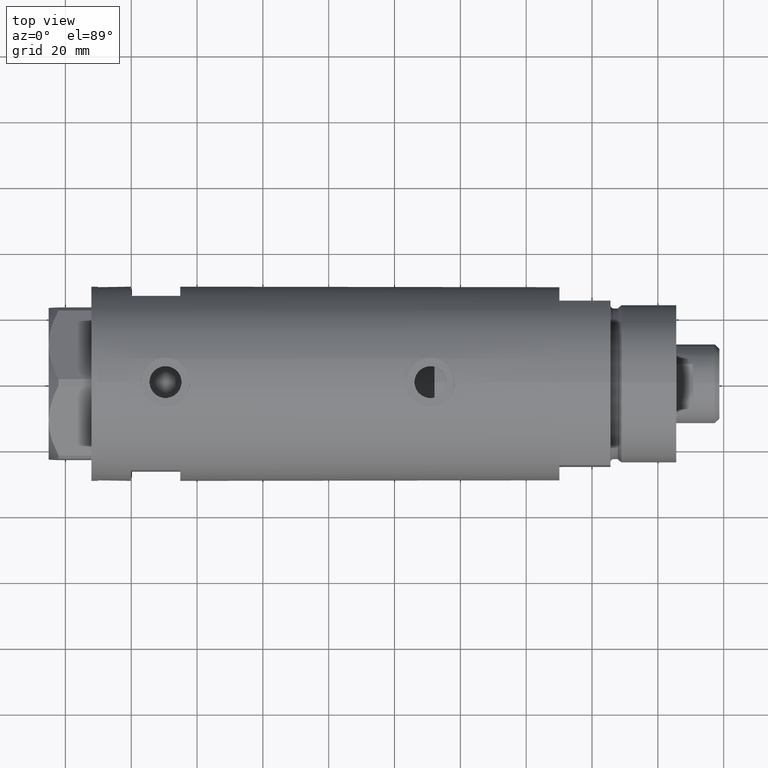
[diagram: clean part render]
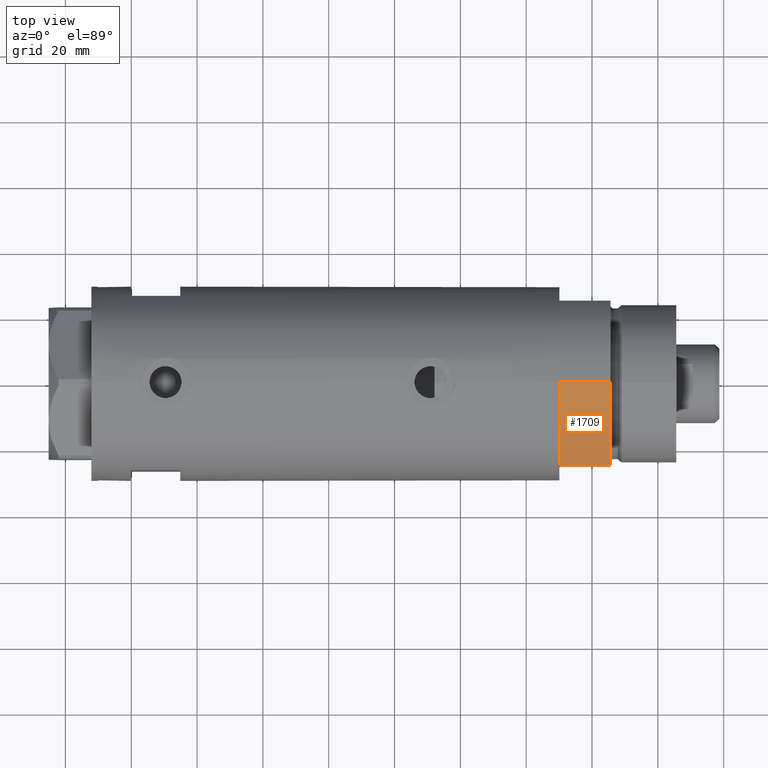
[diagram: same view with one face highlighted and labeled with its STEP entity id]
A machine part, top view. The second image highlights one B-rep face of the part: STEP entity #1709.
In plain terms, the highlighted cylindrical surface (partial cylindrical patch) has radius 29.5 mm, axis along (-1, -0, 0).
Its self-contained STEP definition (entity closure, byte-faithful):
#8 = AXIS2_PLACEMENT_3D ( 'NONE', #2178, #2201, #3653 ) ;
#30 = DIRECTION ( 'NONE',  ( -1.000000000000000000, 0.000000000000000000, 0.000000000000000000 ) ) ;
#96 = EDGE_LOOP ( 'NONE', ( #3444, #4608, #3119, #671 ) ) ;
#127 = CARTESIAN_POINT ( 'NONE',  ( -29.50000000000000355, 0.000000000000000000, 15.50000000000000000 ) ) ;
#389 = AXIS2_PLACEMENT_3D ( 'NONE', #580, #2066, #30 ) ;
#458 = DIRECTION ( 'NONE',  ( -0.000000000000000000, -0.000000000000000000, -1.000000000000000000 ) ) ;
#493 = VECTOR ( 'NONE', #1882, 1000.000000000000000 ) ;
#580 = CARTESIAN_POINT ( 'NONE',  ( 0.000000000000000000, 0.000000000000000000, 15.50000000000000000 ) ) ;
#671 = ORIENTED_EDGE ( 'NONE', *, *, #4156, .T. ) ;
#900 = CARTESIAN_POINT ( 'NONE',  ( -29.50000000000000355, 0.000000000000000000, 0.000000000000000000 ) ) ;
#988 = DIRECTION ( 'NONE',  ( 0.000000000000000000, 0.000000000000000000, 1.000000000000000000 ) ) ;
#1352 = AXIS2_PLACEMENT_3D ( 'NONE', #1664, #988, #1738 ) ;
#1462 = EDGE_CURVE ( 'NONE', #2895, #3453, #2716, .T. ) ;
#1541 = EDGE_CURVE ( 'NONE', #2895, #1932, #2308, .T. ) ;
#1591 = CARTESIAN_POINT ( 'NONE',  ( -15.66045976336582690, -25.00000000000000000, 0.000000000000000000 ) ) ;
#1664 = CARTESIAN_POINT ( 'NONE',  ( 0.000000000000000000, 0.000000000000000000, 0.000000000000000000 ) ) ;
#1709 = ADVANCED_FACE ( 'NONE', ( #2431 ), #3900, .T. ) ;
#1738 = DIRECTION ( 'NONE',  ( 1.000000000000000000, 0.000000000000000000, 0.000000000000000000 ) ) ;
#1882 = DIRECTION ( 'NONE',  ( -0.000000000000000000, -0.000000000000000000, 1.000000000000000000 ) ) ;
#1932 = VERTEX_POINT ( 'NONE', #900 ) ;
#1938 = CARTESIAN_POINT ( 'NONE',  ( -29.50000000000000355, 0.000000000000000000, 15.50000000000000000 ) ) ;
#1981 = CARTESIAN_POINT ( 'NONE',  ( -15.66045976336583401, -25.00000000000000000, 0.000000000000000000 ) ) ;
#2066 = DIRECTION ( 'NONE',  ( -0.000000000000000000, -0.000000000000000000, -1.000000000000000000 ) ) ;
#2176 = CARTESIAN_POINT ( 'NONE',  ( -15.66045976336583045, -25.00000000000000000, 15.50000000000000000 ) ) ;
#2178 = CARTESIAN_POINT ( 'NONE',  ( 0.000000000000000000, 0.000000000000000000, 15.50000000000000000 ) ) ;
#2201 = DIRECTION ( 'NONE',  ( 0.000000000000000000, 0.000000000000000000, 1.000000000000000000 ) ) ;
#2308 = LINE ( 'NONE', #1938, #3575 ) ;
#2372 = LINE ( 'NONE', #1981, #493 ) ;
#2431 = FACE_OUTER_BOUND ( 'NONE', #96, .T. ) ;
#2716 = CIRCLE ( 'NONE', #8, 29.50000000000000355 ) ;
#2895 = VERTEX_POINT ( 'NONE', #127 ) ;
#3119 = ORIENTED_EDGE ( 'NONE', *, *, #4286, .T. ) ;
#3444 = ORIENTED_EDGE ( 'NONE', *, *, #1462, .F. ) ;
#3453 = VERTEX_POINT ( 'NONE', #2176 ) ;
#3575 = VECTOR ( 'NONE', #458, 1000.000000000000000 ) ;
#3653 = DIRECTION ( 'NONE',  ( 1.000000000000000000, 0.000000000000000000, 0.000000000000000000 ) ) ;
#3900 = CYLINDRICAL_SURFACE ( 'NONE', #389, 29.50000000000000355 ) ;
#3908 = CIRCLE ( 'NONE', #1352, 29.50000000000000355 ) ;
#4124 = VERTEX_POINT ( 'NONE', #1591 ) ;
#4156 = EDGE_CURVE ( 'NONE', #4124, #3453, #2372, .T. ) ;
#4286 = EDGE_CURVE ( 'NONE', #1932, #4124, #3908, .T. ) ;
#4608 = ORIENTED_EDGE ( 'NONE', *, *, #1541, .T. ) ;